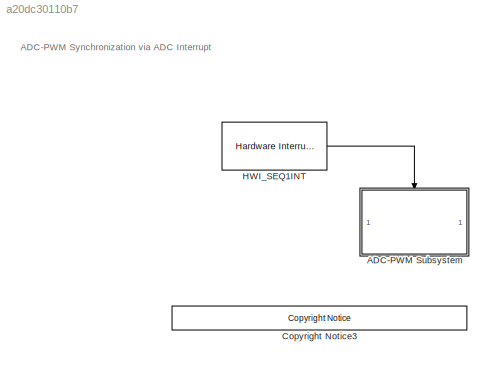
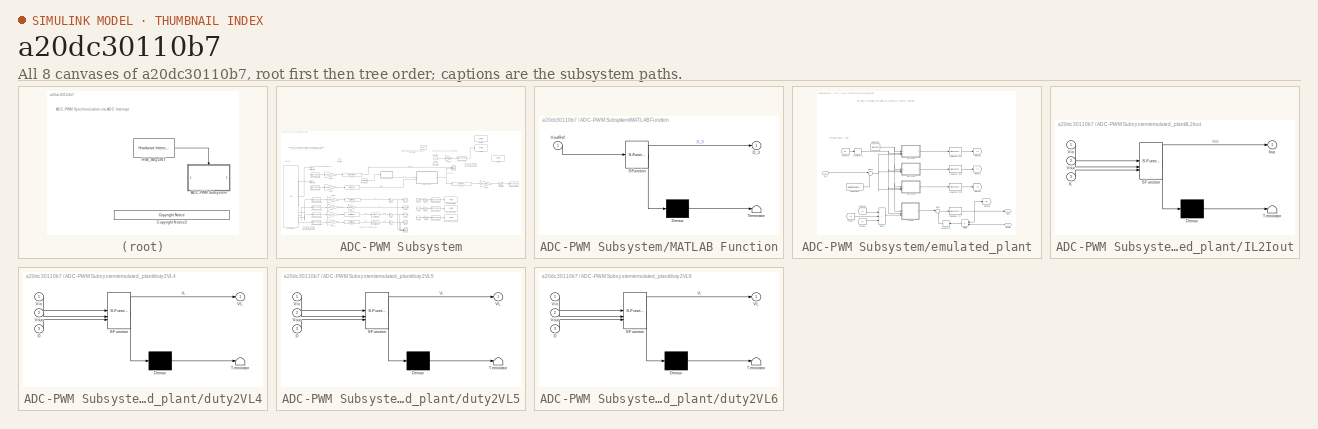
[diagram: thumbnail index - all 8 canvases of the model, root first then tree order]
MODEL slx_a20dc30110b7
KIND model
CONFIG AbsTol = auto
CONFIG EnableMultiTasking = on
CONFIG FixedStep = Tsw
CONFIG MaxStep = auto
CONFIG MinStep = auto
CONFIG RelTol = 1e-3
CONFIG SampleTimeConstraint = Unconstrained
CONFIG SolverName = FixedStepDiscrete
CONFIG StartTime = 0.0
CONFIG StopTime = inf
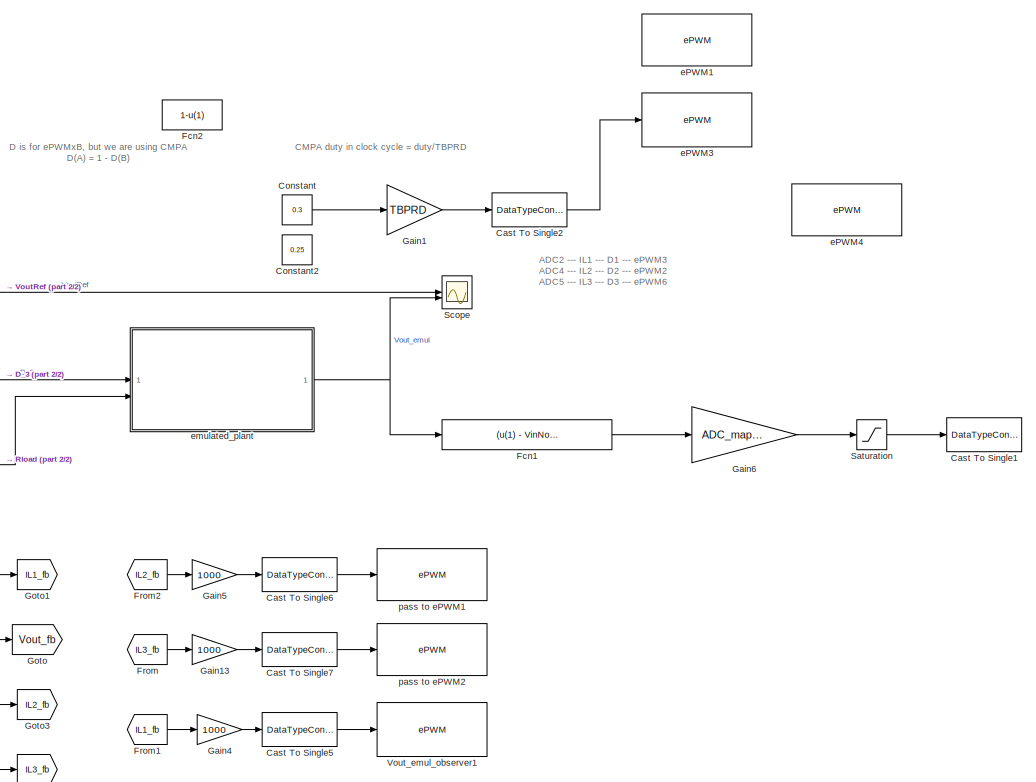
[diagram: ADC-PWM Subsystem - part 1/2, right side, full height]
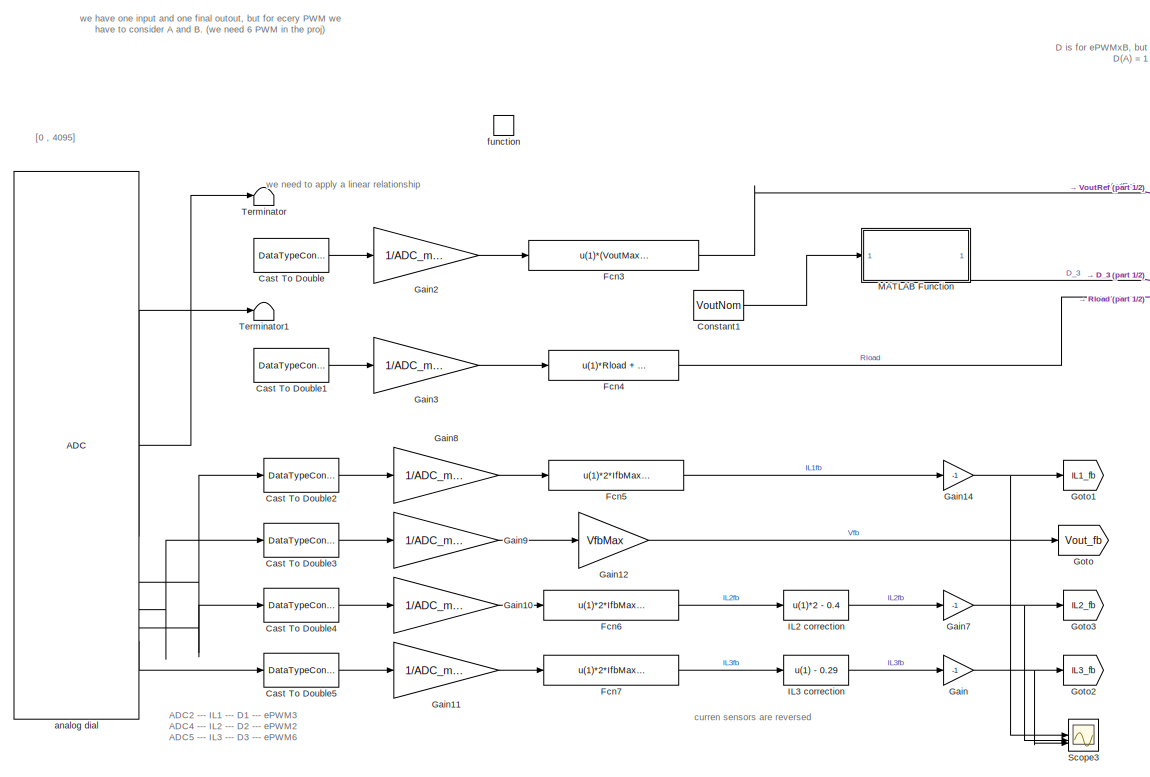
[diagram: ADC-PWM Subsystem - part 2/2, left side, full height]
BLOCK [SubSystem] ADC-PWM Subsystem
  TreatAsAtomicUnit = on
BLOCK [DataTypeConversion] ADC-PWM Subsystem/Cast To Double
  Commented = on
  OutDataTypeStr = double
  RndMeth = Floor
  SaturateOnIntegerOverflow = off
BLOCK [DataTypeConversion] ADC-PWM Subsystem/Cast To Double1
  Commented = on
  OutDataTypeStr = double
  RndMeth = Floor
  SaturateOnIntegerOverflow = off
BLOCK [DataTypeConversion] ADC-PWM Subsystem/Cast To Double2
  OutDataTypeStr = double
  RndMeth = Floor
  SaturateOnIntegerOverflow = off
BLOCK [DataTypeConversion] ADC-PWM Subsystem/Cast To Double3
  OutDataTypeStr = double
  RndMeth = Floor
  SaturateOnIntegerOverflow = off
BLOCK [DataTypeConversion] ADC-PWM Subsystem/Cast To Double4
  OutDataTypeStr = double
  RndMeth = Floor
  SaturateOnIntegerOverflow = off
BLOCK [DataTypeConversion] ADC-PWM Subsystem/Cast To Double5
  OutDataTypeStr = double
  RndMeth = Floor
  SaturateOnIntegerOverflow = off
BLOCK [DataTypeConversion] ADC-PWM Subsystem/Cast To Single1
  Commented = on
  OutDataTypeStr = uint16
  RndMeth = Floor
  SaturateOnIntegerOverflow = off
BLOCK [DataTypeConversion] ADC-PWM Subsystem/Cast To Single2
  OutDataTypeStr = uint16
  RndMeth = Floor
  SaturateOnIntegerOverflow = off
BLOCK [DataTypeConversion] ADC-PWM Subsystem/Cast To Single5
  OutDataTypeStr = uint16
  RndMeth = Floor
  SaturateOnIntegerOverflow = off
BLOCK [DataTypeConversion] ADC-PWM Subsystem/Cast To Single6
  OutDataTypeStr = uint16
  RndMeth = Floor
  SaturateOnIntegerOverflow = off
BLOCK [DataTypeConversion] ADC-PWM Subsystem/Cast To Single7
  OutDataTypeStr = uint16
  RndMeth = Floor
  SaturateOnIntegerOverflow = off
BLOCK [Constant] ADC-PWM Subsystem/Constant
  Value = 0.3
BLOCK [Constant] ADC-PWM Subsystem/Constant1
  Commented = on
  SampleTime = -1
  Value = VoutNom
BLOCK [Constant] ADC-PWM Subsystem/Constant2
  Commented = on
  Value = 0.25
BLOCK [Fcn] ADC-PWM Subsystem/Fcn1
  Commented = on
  Expr = (u(1) - VinNom) / (VoutMax-VinNom)
BLOCK [Fcn] ADC-PWM Subsystem/Fcn2
  Commented = on
  Expr = 1-u(1)
BLOCK [Fcn] ADC-PWM Subsystem/Fcn3
  Commented = on
  Expr = u(1)*(VoutMax-VinNom) + VinNom
BLOCK [Fcn] ADC-PWM Subsystem/Fcn4
  Commented = on
  Expr = u(1)*Rload + 0.5*Rload
BLOCK [Fcn] ADC-PWM Subsystem/Fcn5
  Expr = u(1)*2*IfbMax - IfbMax
BLOCK [Fcn] ADC-PWM Subsystem/Fcn6
  Expr = u(1)*2*IfbMax - IfbMax
BLOCK [Fcn] ADC-PWM Subsystem/Fcn7
  Expr = u(1)*2*IfbMax - IfbMax
BLOCK [From] ADC-PWM Subsystem/From
  GotoTag = IL3_fb
BLOCK [From] ADC-PWM Subsystem/From1
  GotoTag = IL1_fb
BLOCK [From] ADC-PWM Subsystem/From2
  GotoTag = IL2_fb
BLOCK [Gain] ADC-PWM Subsystem/Gain
  Gain = -1
BLOCK [Gain] ADC-PWM Subsystem/Gain1
  Gain = TBPRD
BLOCK [Gain] ADC-PWM Subsystem/Gain10
  Gain = 1/ADC_mapping
BLOCK [Gain] ADC-PWM Subsystem/Gain11
  Gain = 1/ADC_mapping
BLOCK [Gain] ADC-PWM Subsystem/Gain12
  Gain = VfbMax
BLOCK [Gain] ADC-PWM Subsystem/Gain13
  Gain = 1000
BLOCK [Gain] ADC-PWM Subsystem/Gain14
  Gain = -1
BLOCK [Gain] ADC-PWM Subsystem/Gain2
  Commented = on
  Gain = 1/ADC_mapping
BLOCK [Gain] ADC-PWM Subsystem/Gain3
  Commented = on
  Gain = 1/ADC_mapping
BLOCK [Gain] ADC-PWM Subsystem/Gain4
  Gain = 1000
BLOCK [Gain] ADC-PWM Subsystem/Gain5
  Gain = 1000
BLOCK [Gain] ADC-PWM Subsystem/Gain6
  Commented = on
  Gain = ADC_mapping
BLOCK [Gain] ADC-PWM Subsystem/Gain7
  Gain = -1
BLOCK [Gain] ADC-PWM Subsystem/Gain8
  Gain = 1/ADC_mapping
BLOCK [Gain] ADC-PWM Subsystem/Gain9
  Gain = 1/ADC_mapping
BLOCK [Goto] ADC-PWM Subsystem/Goto
  GotoTag = Vout_fb
BLOCK [Goto] ADC-PWM Subsystem/Goto1
  GotoTag = IL1_fb
BLOCK [Goto] ADC-PWM Subsystem/Goto2
  GotoTag = IL3_fb
BLOCK [Goto] ADC-PWM Subsystem/Goto3
  GotoTag = IL2_fb
BLOCK [Fcn] ADC-PWM Subsystem/IL2 correction
  Expr = u(1)*2 - 0.4
BLOCK [Fcn] ADC-PWM Subsystem/IL3 correction
  Expr = u(1) - 0.29
BLOCK [SubSystem] ADC-PWM Subsystem/MATLAB Function
  Commented = on
  ErrorFcn = Stateflow.Translate.translate
  PermitHierarchicalResolution = ExplicitOnly
  SFBlockType = MATLAB Function
  TreatAsAtomicUnit = on
BLOCK [Demux] ADC-PWM Subsystem/MATLAB Function/ Demux 
  Outputs = 1
BLOCK [S-Function] ADC-PWM Subsystem/MATLAB Function/ SFunction 
  EnableBusSupport = on
  FunctionName = sf_sfun
  Parameters = IoutNom,RserL,VinNom
  PortCounts = [1 2]
  SFcnIsStateOwnerBlock = off
  SFunctionDeploymentMode = off
  Tag = Stateflow S-Function 4
BLOCK [Terminator] ADC-PWM Subsystem/MATLAB Function/ Terminator 
BLOCK [Outport] ADC-PWM Subsystem/MATLAB Function/D_3
BLOCK [Inport] ADC-PWM Subsystem/MATLAB Function/VoutRef
BLOCK [Saturate] ADC-PWM Subsystem/Saturation
  Commented = on
  LowerLimit = 0
  UpperLimit = ADC_mapping
BLOCK [Scope] ADC-PWM Subsystem/Scope
  Commented = on
  Floating = off
  NumInputPorts = 2
  ScopeSpecificationString = Simulink.scopes.TimeScopeBlockCfg('CurrentConfiguration', extmgr.ConfigurationSet(extmgr.Configuration('Core','General UI',true),extmgr.Configuration('Core','Source UI',true),extmgr.Configuration('Sources','WiredSimulink',true),extmgr.Configuration('Visuals','Time Domain',true),extmgr.Configuration('Tools','Plot Navigation',true),extmgr.Configuration('Tools','Measurements',true)),'Version','2024a'...<+1ch>
BLOCK [Scope] ADC-PWM Subsystem/Scope3
  Floating = off
  NumInputPorts = 3
  ScopeSpecificationString = Simulink.scopes.TimeScopeBlockCfg('CurrentConfiguration', extmgr.ConfigurationSet(extmgr.Configuration('Core','General UI',true),extmgr.Configuration('Core','Source UI',true),extmgr.Configuration('Sources','WiredSimulink',true,'DataLoggingVariableName','ScopeData1'),extmgr.Configuration('Visuals','Time Domain',true,'SerializedDisplays',{struct('MinYLimReal','-10','MaxYLimReal','10','YLabelReal',''...<+1480ch>
BLOCK [Terminator] ADC-PWM Subsystem/Terminator
BLOCK [Terminator] ADC-PWM Subsystem/Terminator1
BLOCK [Reference] ADC-PWM Subsystem/Vout_emul_observer1  REF=c280xlib/ePWM
  SourceBlock = c280xlib/ePWM
  SourceType = ePWM Type 0
  UserDataPersistent = on
BLOCK [Reference] ADC-PWM Subsystem/analog dial  REF=c280xlib/ADC
  SourceBlock = c280xlib/ADC
  SourceType = ADC Type 1-2
  UserDataPersistent = on
BLOCK [Reference] ADC-PWM Subsystem/ePWM1  REF=c280xlib/ePWM
  Commented = on
  SourceBlock = c280xlib/ePWM
  SourceType = ePWM Type 0
  UserDataPersistent = on
BLOCK [Reference] ADC-PWM Subsystem/ePWM3  REF=c280xlib/ePWM
  SourceBlock = c280xlib/ePWM
  SourceType = ePWM Type 0
  UserDataPersistent = on
BLOCK [Reference] ADC-PWM Subsystem/ePWM4  REF=c280xlib/ePWM
  Commented = on
  SourceBlock = c280xlib/ePWM
  SourceType = ePWM Type 0
  UserDataPersistent = on
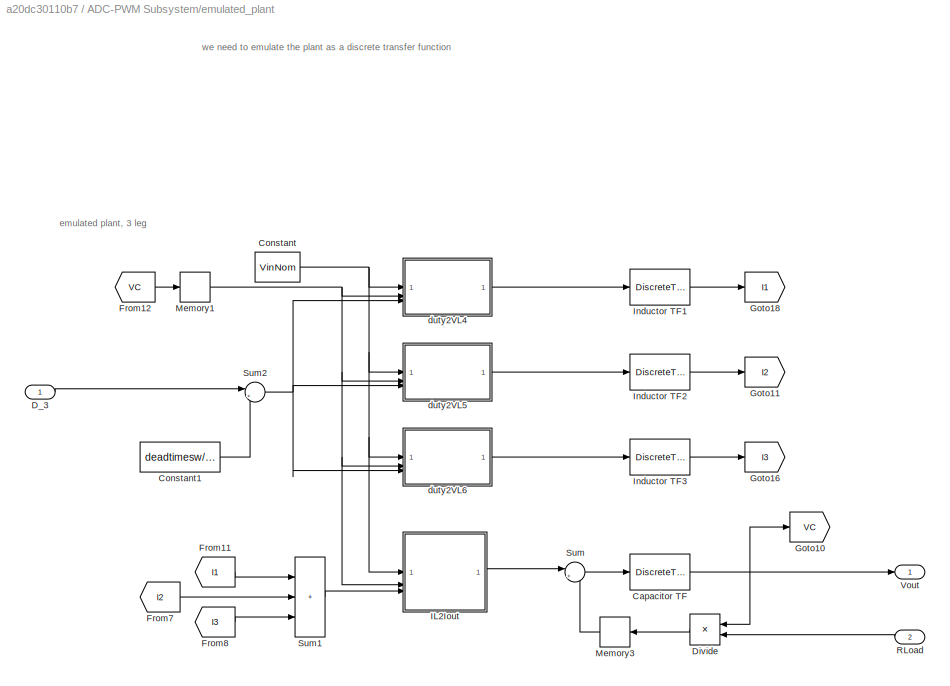
BLOCK [SubSystem] ADC-PWM Subsystem/emulated_plant
  Commented = on
BLOCK [DiscreteTransferFcn] ADC-PWM Subsystem/emulated_plant/Capacitor TF
  Denominator = zden_plant_v
  InputPortMap = u0
  Numerator = znum_plant_v
BLOCK [Constant] ADC-PWM Subsystem/emulated_plant/Constant
  Value = VinNom
BLOCK [Constant] ADC-PWM Subsystem/emulated_plant/Constant1
  Value = deadtimesw/Tsw
BLOCK [Inport] ADC-PWM Subsystem/emulated_plant/D_3
BLOCK [Product] ADC-PWM Subsystem/emulated_plant/Divide
  Inputs = */
  NameLocation = top
BLOCK [From] ADC-PWM Subsystem/emulated_plant/From11
  GotoTag = I1
BLOCK [From] ADC-PWM Subsystem/emulated_plant/From12
  GotoTag = VC
BLOCK [From] ADC-PWM Subsystem/emulated_plant/From7
  GotoTag = I2
BLOCK [From] ADC-PWM Subsystem/emulated_plant/From8
  GotoTag = I3
BLOCK [Goto] ADC-PWM Subsystem/emulated_plant/Goto10
  GotoTag = VC
BLOCK [Goto] ADC-PWM Subsystem/emulated_plant/Goto11
  GotoTag = I2
BLOCK [Goto] ADC-PWM Subsystem/emulated_plant/Goto16
  GotoTag = I3
BLOCK [Goto] ADC-PWM Subsystem/emulated_plant/Goto18
  GotoTag = I1
BLOCK [SubSystem] ADC-PWM Subsystem/emulated_plant/IL2Iout
  ErrorFcn = Stateflow.Translate.translate
  PermitHierarchicalResolution = ExplicitOnly
  SFBlockType = MATLAB Function
  TreatAsAtomicUnit = on
BLOCK [Demux] ADC-PWM Subsystem/emulated_plant/IL2Iout/ Demux 
  Outputs = 1
BLOCK [S-Function] ADC-PWM Subsystem/emulated_plant/IL2Iout/ SFunction 
  EnableBusSupport = on
  FunctionName = sf_sfun
  Parameters = RserL
  PortCounts = [3 2]
  SFcnIsStateOwnerBlock = off
  SFunctionDeploymentMode = off
  Tag = Stateflow S-Function 11
BLOCK [Terminator] ADC-PWM Subsystem/emulated_plant/IL2Iout/ Terminator 
BLOCK [Inport] ADC-PWM Subsystem/emulated_plant/IL2Iout/IL
  Port = 3
BLOCK [Outport] ADC-PWM Subsystem/emulated_plant/IL2Iout/Iout
  VectorParamsAs1DForOutWhenUnconnected = off
BLOCK [Inport] ADC-PWM Subsystem/emulated_plant/IL2Iout/Vin
BLOCK [Inport] ADC-PWM Subsystem/emulated_plant/IL2Iout/Vout
  Port = 2
BLOCK [DiscreteTransferFcn] ADC-PWM Subsystem/emulated_plant/Inductor TF1
  Denominator = zden_plant_i
  InputPortMap = u0
  Numerator = znum_plant_i
BLOCK [DiscreteTransferFcn] ADC-PWM Subsystem/emulated_plant/Inductor TF2
  Denominator = zden_plant_i
  InputPortMap = u0
  Numerator = znum_plant_i
BLOCK [DiscreteTransferFcn] ADC-PWM Subsystem/emulated_plant/Inductor TF3
  Denominator = zden_plant_i
  InputPortMap = u0
  Numerator = znum_plant_i
BLOCK [Memory] ADC-PWM Subsystem/emulated_plant/Memory1
  InheritSampleTime = on
BLOCK [Memory] ADC-PWM Subsystem/emulated_plant/Memory3
  InheritSampleTime = on
  NameLocation = top
BLOCK [Inport] ADC-PWM Subsystem/emulated_plant/RLoad
  NameLocation = top
  Port = 2
BLOCK [Sum] ADC-PWM Subsystem/emulated_plant/Sum
  Inputs = |+-
BLOCK [Sum] ADC-PWM Subsystem/emulated_plant/Sum1
  IconShape = rectangular
  Inputs = +++
BLOCK [Sum] ADC-PWM Subsystem/emulated_plant/Sum2
  Inputs = |+-
BLOCK [Outport] ADC-PWM Subsystem/emulated_plant/Vout
BLOCK [SubSystem] ADC-PWM Subsystem/emulated_plant/duty2VL4
  ErrorFcn = Stateflow.Translate.translate
  NameLocation = top
  PermitHierarchicalResolution = ExplicitOnly
  SFBlockType = MATLAB Function
  TreatAsAtomicUnit = on
BLOCK [Demux] ADC-PWM Subsystem/emulated_plant/duty2VL4/ Demux 
  Outputs = 1
BLOCK [S-Function] ADC-PWM Subsystem/emulated_plant/duty2VL4/ SFunction 
  EnableBusSupport = on
  FunctionName = sf_sfun
  PortCounts = [3 2]
  SFcnIsStateOwnerBlock = off
  SFunctionDeploymentMode = off
  Tag = Stateflow S-Function 7
BLOCK [Terminator] ADC-PWM Subsystem/emulated_plant/duty2VL4/ Terminator 
BLOCK [Inport] ADC-PWM Subsystem/emulated_plant/duty2VL4/D
  Port = 3
BLOCK [Outport] ADC-PWM Subsystem/emulated_plant/duty2VL4/VL
  VectorParamsAs1DForOutWhenUnconnected = off
BLOCK [Inport] ADC-PWM Subsystem/emulated_plant/duty2VL4/Vin
BLOCK [Inport] ADC-PWM Subsystem/emulated_plant/duty2VL4/Vout
  Port = 2
BLOCK [SubSystem] ADC-PWM Subsystem/emulated_plant/duty2VL5
  ErrorFcn = Stateflow.Translate.translate
  NameLocation = top
  PermitHierarchicalResolution = ExplicitOnly
  SFBlockType = MATLAB Function
  TreatAsAtomicUnit = on
BLOCK [Demux] ADC-PWM Subsystem/emulated_plant/duty2VL5/ Demux 
  Outputs = 1
BLOCK [S-Function] ADC-PWM Subsystem/emulated_plant/duty2VL5/ SFunction 
  EnableBusSupport = on
  FunctionName = sf_sfun
  PortCounts = [3 2]
  SFcnIsStateOwnerBlock = off
  SFunctionDeploymentMode = off
  Tag = Stateflow S-Function 9
BLOCK [Terminator] ADC-PWM Subsystem/emulated_plant/duty2VL5/ Terminator 
BLOCK [Inport] ADC-PWM Subsystem/emulated_plant/duty2VL5/D
  Port = 3
BLOCK [Outport] ADC-PWM Subsystem/emulated_plant/duty2VL5/VL
  VectorParamsAs1DForOutWhenUnconnected = off
BLOCK [Inport] ADC-PWM Subsystem/emulated_plant/duty2VL5/Vin
BLOCK [Inport] ADC-PWM Subsystem/emulated_plant/duty2VL5/Vout
  Port = 2
BLOCK [SubSystem] ADC-PWM Subsystem/emulated_plant/duty2VL6
  ErrorFcn = Stateflow.Translate.translate
  NameLocation = top
  PermitHierarchicalResolution = ExplicitOnly
  SFBlockType = MATLAB Function
  TreatAsAtomicUnit = on
BLOCK [Demux] ADC-PWM Subsystem/emulated_plant/duty2VL6/ Demux 
  Outputs = 1
BLOCK [S-Function] ADC-PWM Subsystem/emulated_plant/duty2VL6/ SFunction 
  EnableBusSupport = on
  FunctionName = sf_sfun
  PortCounts = [3 2]
  SFcnIsStateOwnerBlock = off
  SFunctionDeploymentMode = off
  Tag = Stateflow S-Function 10
BLOCK [Terminator] ADC-PWM Subsystem/emulated_plant/duty2VL6/ Terminator 
BLOCK [Inport] ADC-PWM Subsystem/emulated_plant/duty2VL6/D
  Port = 3
BLOCK [Outport] ADC-PWM Subsystem/emulated_plant/duty2VL6/VL
  VectorParamsAs1DForOutWhenUnconnected = off
BLOCK [Inport] ADC-PWM Subsystem/emulated_plant/duty2VL6/Vin
BLOCK [Inport] ADC-PWM Subsystem/emulated_plant/duty2VL6/Vout
  Port = 2
BLOCK [TriggerPort] ADC-PWM Subsystem/function
  StatesWhenEnabling = held
  TriggerType = function-call
  VariantControl = Variant
BLOCK [Reference] ADC-PWM Subsystem/pass to ePWM1  REF=c280xlib/ePWM
  SourceBlock = c280xlib/ePWM
  SourceType = ePWM Type 0
  UserDataPersistent = on
BLOCK [Reference] ADC-PWM Subsystem/pass to ePWM2  REF=c280xlib/ePWM
  SourceBlock = c280xlib/ePWM
  SourceType = ePWM Type 0
  UserDataPersistent = on
BLOCK [Reference] <copyright redacted>
  SourceBlock = demo_controls/<copyright redacted>
  SourceType = <copyright redacted>
BLOCK [Reference] HWI_SEQ1INT  REF=svdschedulerlib/Hardware Interrupt v2
  LibrarySourceBlock = c2000lib/Scheduling/Hardware Interrupt
  SourceBlock = svdschedulerlib/Hardware Interrupt v2
  SourceType = HardwareInterrupt
  UserDataPersistent = on
ANNOTATION (root): ADC-PWM Synchronization via ADC Interrupt
ANNOTATION ADC-PWM Subsystem: ADC2 --- IL1 --- D1 --- ePWM3 ADC4 --- IL2 --- D2 --- ePWM2 ADC5 --- IL3 --- D3 --- ePWM6
ANNOTATION ADC-PWM Subsystem: CMPA duty in clock cycle = duty/TBPRD
ANNOTATION ADC-PWM Subsystem: D is for ePWMxB, but we are using CMPA D(A) = 1 - D(B)
ANNOTATION ADC-PWM Subsystem: [0 , 4095]
ANNOTATION ADC-PWM Subsystem: curren sensors are reversed
ANNOTATION ADC-PWM Subsystem: we have one input and one final outout, but for ecery PWM we have to consider A and B. (we need 6 PWM in the proj)
ANNOTATION ADC-PWM Subsystem: we need to apply a linear relationship
ANNOTATION ADC-PWM Subsystem/emulated_plant: emulated plant, 3 leg
ANNOTATION ADC-PWM Subsystem/emulated_plant: we need to emulate the plant as a discrete transfer function
LINE ADC-PWM Subsystem/Cast To Double1:1 -> ADC-PWM Subsystem/Gain3:1
LINE ADC-PWM Subsystem/Cast To Double2:1 -> ADC-PWM Subsystem/Gain8:1
LINE ADC-PWM Subsystem/Cast To Double3:1 -> ADC-PWM Subsystem/Gain9:1
LINE ADC-PWM Subsystem/Cast To Double4:1 -> ADC-PWM Subsystem/Gain10:1
LINE ADC-PWM Subsystem/Cast To Double5:1 -> ADC-PWM Subsystem/Gain11:1
LINE ADC-PWM Subsystem/Cast To Double:1 -> ADC-PWM Subsystem/Gain2:1
LINE ADC-PWM Subsystem/Cast To Single2:1 -> ADC-PWM Subsystem/ePWM3:1
LINE ADC-PWM Subsystem/Cast To Single5:1 -> ADC-PWM Subsystem/Vout_emul_observer1:1
LINE ADC-PWM Subsystem/Cast To Single6:1 -> ADC-PWM Subsystem/pass to ePWM1:1
LINE ADC-PWM Subsystem/Cast To Single7:1 -> ADC-PWM Subsystem/pass to ePWM2:1
LINE ADC-PWM Subsystem/Constant1:1 -> ADC-PWM Subsystem/MATLAB Function:1
LINE ADC-PWM Subsystem/Constant:1 -> ADC-PWM Subsystem/Gain1:1
LINE ADC-PWM Subsystem/Fcn1:1 -> ADC-PWM Subsystem/Gain6:1
LINE ADC-PWM Subsystem/Fcn3:1 -> ADC-PWM Subsystem/Scope:1
LINE ADC-PWM Subsystem/Fcn4:1 -> ADC-PWM Subsystem/emulated_plant:2
LINE ADC-PWM Subsystem/Fcn5:1 -> ADC-PWM Subsystem/Gain14:1
LINE ADC-PWM Subsystem/Fcn6:1 -> ADC-PWM Subsystem/IL2 correction:1
LINE ADC-PWM Subsystem/Fcn7:1 -> ADC-PWM Subsystem/IL3 correction:1
LINE ADC-PWM Subsystem/From1:1 -> ADC-PWM Subsystem/Gain4:1
LINE ADC-PWM Subsystem/From2:1 -> ADC-PWM Subsystem/Gain5:1
LINE ADC-PWM Subsystem/From:1 -> ADC-PWM Subsystem/Gain13:1
LINE ADC-PWM Subsystem/Gain10:1 -> ADC-PWM Subsystem/Fcn6:1
LINE ADC-PWM Subsystem/Gain11:1 -> ADC-PWM Subsystem/Fcn7:1
LINE ADC-PWM Subsystem/Gain12:1 -> ADC-PWM Subsystem/Goto:1
LINE ADC-PWM Subsystem/Gain13:1 -> ADC-PWM Subsystem/Cast To Single7:1
NET ADC-PWM Subsystem/Gain14:1 -> ADC-PWM Subsystem/Goto1:1, ADC-PWM Subsystem/Scope3:1
LINE ADC-PWM Subsystem/Gain1:1 -> ADC-PWM Subsystem/Cast To Single2:1
LINE ADC-PWM Subsystem/Gain2:1 -> ADC-PWM Subsystem/Fcn3:1
LINE ADC-PWM Subsystem/Gain3:1 -> ADC-PWM Subsystem/Fcn4:1
LINE ADC-PWM Subsystem/Gain4:1 -> ADC-PWM Subsystem/Cast To Single5:1
LINE ADC-PWM Subsystem/Gain5:1 -> ADC-PWM Subsystem/Cast To Single6:1
LINE ADC-PWM Subsystem/Gain6:1 -> ADC-PWM Subsystem/Saturation:1
NET ADC-PWM Subsystem/Gain7:1 -> ADC-PWM Subsystem/Goto3:1, ADC-PWM Subsystem/Scope3:2
LINE ADC-PWM Subsystem/Gain8:1 -> ADC-PWM Subsystem/Fcn5:1
LINE ADC-PWM Subsystem/Gain9:1 -> ADC-PWM Subsystem/Gain12:1
NET ADC-PWM Subsystem/Gain:1 -> ADC-PWM Subsystem/Goto2:1, ADC-PWM Subsystem/Scope3:3
LINE ADC-PWM Subsystem/IL2 correction:1 -> ADC-PWM Subsystem/Gain7:1
LINE ADC-PWM Subsystem/IL3 correction:1 -> ADC-PWM Subsystem/Gain:1
LINE ADC-PWM Subsystem/MATLAB Function:1 -> ADC-PWM Subsystem/emulated_plant:1
LINE ADC-PWM Subsystem/Saturation:1 -> ADC-PWM Subsystem/Cast To Single1:1
LINE ADC-PWM Subsystem/analog dial:1 -> ADC-PWM Subsystem/Terminator:1
LINE ADC-PWM Subsystem/analog dial:2 -> ADC-PWM Subsystem/Terminator1:1
LINE ADC-PWM Subsystem/analog dial:3 -> ADC-PWM Subsystem/Cast To Double2:1
LINE ADC-PWM Subsystem/analog dial:4 -> ADC-PWM Subsystem/Cast To Double3:1
LINE ADC-PWM Subsystem/analog dial:5 -> ADC-PWM Subsystem/Cast To Double4:1
LINE ADC-PWM Subsystem/analog dial:6 -> ADC-PWM Subsystem/Cast To Double5:1
NET ADC-PWM Subsystem/emulated_plant/Capacitor TF:1 -> ADC-PWM Subsystem/emulated_plant/Divide:1, ADC-PWM Subsystem/emulated_plant/Goto10:1, ADC-PWM Subsystem/emulated_plant/Vout:1
LINE ADC-PWM Subsystem/emulated_plant/Constant1:1 -> ADC-PWM Subsystem/emulated_plant/Sum2:2
NET ADC-PWM Subsystem/emulated_plant/Constant:1 -> ADC-PWM Subsystem/emulated_plant/IL2Iout:1, ADC-PWM Subsystem/emulated_plant/duty2VL4:1, ADC-PWM Subsystem/emulated_plant/duty2VL5:1, ADC-PWM Subsystem/emulated_plant/duty2VL6:1
LINE ADC-PWM Subsystem/emulated_plant/D_3:1 -> ADC-PWM Subsystem/emulated_plant/Sum2:1
LINE ADC-PWM Subsystem/emulated_plant/Divide:1 -> ADC-PWM Subsystem/emulated_plant/Memory3:1
LINE ADC-PWM Subsystem/emulated_plant/From11:1 -> ADC-PWM Subsystem/emulated_plant/Sum1:1
LINE ADC-PWM Subsystem/emulated_plant/From12:1 -> ADC-PWM Subsystem/emulated_plant/Memory1:1
LINE ADC-PWM Subsystem/emulated_plant/From7:1 -> ADC-PWM Subsystem/emulated_plant/Sum1:2
LINE ADC-PWM Subsystem/emulated_plant/From8:1 -> ADC-PWM Subsystem/emulated_plant/Sum1:3
LINE ADC-PWM Subsystem/emulated_plant/IL2Iout:1 -> ADC-PWM Subsystem/emulated_plant/Sum:1
LINE ADC-PWM Subsystem/emulated_plant/Inductor TF1:1 -> ADC-PWM Subsystem/emulated_plant/Goto18:1
LINE ADC-PWM Subsystem/emulated_plant/Inductor TF2:1 -> ADC-PWM Subsystem/emulated_plant/Goto11:1
LINE ADC-PWM Subsystem/emulated_plant/Inductor TF3:1 -> ADC-PWM Subsystem/emulated_plant/Goto16:1
NET ADC-PWM Subsystem/emulated_plant/Memory1:1 -> ADC-PWM Subsystem/emulated_plant/IL2Iout:2, ADC-PWM Subsystem/emulated_plant/duty2VL4:2, ADC-PWM Subsystem/emulated_plant/duty2VL5:2, ADC-PWM Subsystem/emulated_plant/duty2VL6:2
LINE ADC-PWM Subsystem/emulated_plant/Memory3:1 -> ADC-PWM Subsystem/emulated_plant/Sum:2
LINE ADC-PWM Subsystem/emulated_plant/RLoad:1 -> ADC-PWM Subsystem/emulated_plant/Divide:2
LINE ADC-PWM Subsystem/emulated_plant/Sum1:1 -> ADC-PWM Subsystem/emulated_plant/IL2Iout:3
NET ADC-PWM Subsystem/emulated_plant/Sum2:1 -> ADC-PWM Subsystem/emulated_plant/duty2VL4:3, ADC-PWM Subsystem/emulated_plant/duty2VL5:3, ADC-PWM Subsystem/emulated_plant/duty2VL6:3
LINE ADC-PWM Subsystem/emulated_plant/Sum:1 -> ADC-PWM Subsystem/emulated_plant/Capacitor TF:1
LINE ADC-PWM Subsystem/emulated_plant/duty2VL4:1 -> ADC-PWM Subsystem/emulated_plant/Inductor TF1:1
LINE ADC-PWM Subsystem/emulated_plant/duty2VL5:1 -> ADC-PWM Subsystem/emulated_plant/Inductor TF2:1
LINE ADC-PWM Subsystem/emulated_plant/duty2VL6:1 -> ADC-PWM Subsystem/emulated_plant/Inductor TF3:1
NET ADC-PWM Subsystem/emulated_plant:1 -> ADC-PWM Subsystem/Fcn1:1, ADC-PWM Subsystem/Scope:2
LINE HWI_SEQ1INT:1 -> ADC-PWM Subsystem:trigger
note: NET lines group one-source signal fan-out (src -> all destinations, sorted); 1:1 wires keep LINE
CHART ADC-PWM
Subsystem/MATLAB Function states=1 transitions=1
  STATE_LABEL 'eML_blk_kernel()'
  STATE_LABEL 'SCRIPT:\nfunction D_3 = fcn(VinNom, RserL, IoutNom, VoutRef)\n\n% openloop duty cycle for 1leg\nD = 1 - VinNom/VoutRef;\nD_3 = D;\n\n%\n% interleaved OL duty cycle correction\nIin = IoutNom/(1-D_3);\nVdropL = Iin*RserL/3;\nD_3 = (1 - (VinNom-VdropL)/VoutRef);\n%}'
CHART ADC-PWM
Subsystem/emulated_plant/duty2VL4 states=1 transitions=1
  STATE_LABEL 'eML_blk_kernel()'
  STATE_LABEL 'SCRIPT:\nfunction VL = fcn(Vin,Vout,D)\n\nVL = min((D-1)*Vout + Vin, Vin);'
CHART ADC-PWM
Subsystem/emulated_plant/duty2VL5 states=1 transitions=1
  STATE_LABEL 'eML_blk_kernel()'
  STATE_LABEL 'SCRIPT:\nfunction VL = fcn(Vin,Vout,D)\n\nVL = min((D-1)*Vout + Vin, Vin);'
CHART ADC-PWM
Subsystem/emulated_plant/duty2VL6 states=1 transitions=1
  STATE_LABEL 'eML_blk_kernel()'
  STATE_LABEL 'SCRIPT:\nfunction VL = fcn(Vin,Vout,D)\n\nVL = min((D-1)*Vout + Vin, Vin);'
CHART ADC-PWM
Subsystem/emulated_plant/IL2Iout states=1 transitions=1
  STATE_LABEL 'eML_blk_kernel()'
  STATE_LABEL 'SCRIPT:\nfunction Iout = fcn(Vin,Vout,IL,RserL)\n\nif Vout < Vin\n    Vout = Vin;\nend\nK_Iout_IL = (Vin - RserL*IL) / Vout;\nIout = IL*K_Iout_IL;\n\n'
CHART  states=0 transitions=0
CHART  states=0 transitions=0
CHART  states=0 transitions=0
CHART  states=0 transitions=0
CHART  states=0 transitions=0
